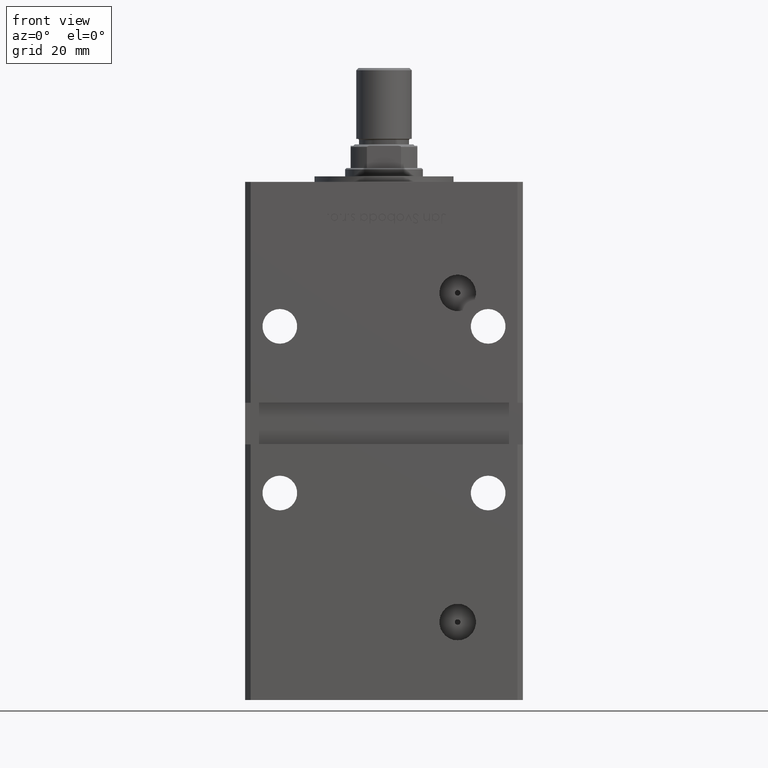
[diagram: clean part render]
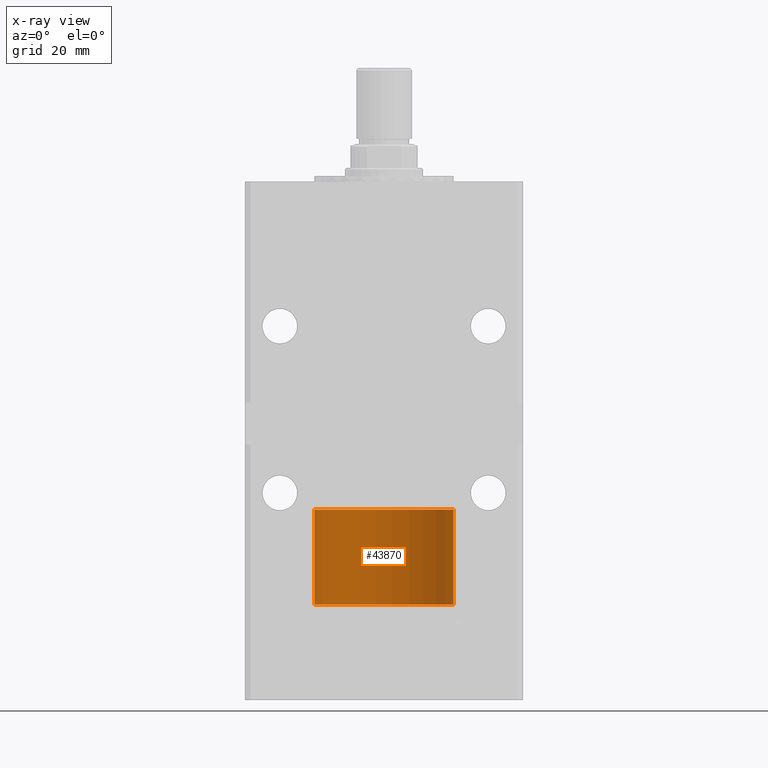
[diagram: x-ray — body ghosted, one internal face saturated and labeled with its STEP entity id]
A machine part, front view, then the same camera in x-ray: the body is ghosted and one INTERNAL B-rep face — a face not visible from any outside direction — is saturated and labeled: STEP entity #43870.
In plain terms, the highlighted cylindrical surface (partial cylindrical patch) has radius 25 mm, axis along (-0, -0, -1).
Its self-contained STEP definition (entity closure, byte-faithful):
#2282 = EDGE_LOOP ( 'NONE', ( #39715, #11488, #47138, #34311 ) ) ;
#4279 = CIRCLE ( 'NONE', #14676, 25.00000000000000000 ) ;
#4437 = AXIS2_PLACEMENT_3D ( 'NONE', #50116, #29241, #5095 ) ;
#5095 = DIRECTION ( 'NONE',  ( 1.000000000000000000, 0.000000000000000000, 0.000000000000000000 ) ) ;
#8720 = DIRECTION ( 'NONE',  ( 0.000000000000000000, 0.000000000000000000, 1.000000000000000000 ) ) ;
#10169 = VERTEX_POINT ( 'NONE', #46108 ) ;
#10518 = EDGE_CURVE ( 'NONE', #10169, #12643, #39926, .T. ) ;
#11488 = ORIENTED_EDGE ( 'NONE', *, *, #27154, .T. ) ;
#12643 = VERTEX_POINT ( 'NONE', #20250 ) ;
#13292 = VECTOR ( 'NONE', #38101, 1000.000000000000000 ) ;
#13600 = CARTESIAN_POINT ( 'NONE',  ( 0.000000000000000000, 0.000000000000000000, 34.25000000000000000 ) ) ;
#14676 = AXIS2_PLACEMENT_3D ( 'NONE', #45871, #8720, #29879 ) ;
#15584 = CARTESIAN_POINT ( 'NONE',  ( -25.00000000000000000, 0.000000000000000000, 34.25000000000000000 ) ) ;
#16865 = CARTESIAN_POINT ( 'NONE',  ( 25.00000000000000000, 3.061616997868383043E-15, 34.25000000000000000 ) ) ;
#17672 = CYLINDRICAL_SURFACE ( 'NONE', #31071, 25.00000000000000000 ) ;
#20250 = CARTESIAN_POINT ( 'NONE',  ( -25.00000000000000000, 0.000000000000000000, 0.000000000000000000 ) ) ;
#22276 = VERTEX_POINT ( 'NONE', #16865 ) ;
#27154 = EDGE_CURVE ( 'NONE', #22276, #10169, #31027, .T. ) ;
#27523 = LINE ( 'NONE', #15584, #47136 ) ;
#29241 = DIRECTION ( 'NONE',  ( 0.000000000000000000, 0.000000000000000000, 1.000000000000000000 ) ) ;
#29879 = DIRECTION ( 'NONE',  ( 1.000000000000000000, 0.000000000000000000, 0.000000000000000000 ) ) ;
#31027 = LINE ( 'NONE', #46497, #13292 ) ;
#31071 = AXIS2_PLACEMENT_3D ( 'NONE', #13600, #46688, #41567 ) ;
#32107 = EDGE_CURVE ( 'NONE', #34001, #12643, #27523, .T. ) ;
#34001 = VERTEX_POINT ( 'NONE', #40750 ) ;
#34311 = ORIENTED_EDGE ( 'NONE', *, *, #32107, .F. ) ;
#35925 = DIRECTION ( 'NONE',  ( -0.000000000000000000, -0.000000000000000000, -1.000000000000000000 ) ) ;
#38101 = DIRECTION ( 'NONE',  ( -0.000000000000000000, -0.000000000000000000, -1.000000000000000000 ) ) ;
#39715 = ORIENTED_EDGE ( 'NONE', *, *, #50246, .F. ) ;
#39926 = CIRCLE ( 'NONE', #4437, 25.00000000000000000 ) ;
#40750 = CARTESIAN_POINT ( 'NONE',  ( -25.00000000000000000, 0.000000000000000000, 34.25000000000000000 ) ) ;
#41567 = DIRECTION ( 'NONE',  ( -1.000000000000000000, 0.000000000000000000, 0.000000000000000000 ) ) ;
#43870 = ADVANCED_FACE ( 'NONE', ( #49695 ), #17672, .T. ) ;
#45871 = CARTESIAN_POINT ( 'NONE',  ( 0.000000000000000000, 0.000000000000000000, 34.25000000000000000 ) ) ;
#46108 = CARTESIAN_POINT ( 'NONE',  ( 25.00000000000000000, 3.061616997868383043E-15, 0.000000000000000000 ) ) ;
#46497 = CARTESIAN_POINT ( 'NONE',  ( 25.00000000000000000, 3.061616997868383043E-15, 34.25000000000000000 ) ) ;
#46688 = DIRECTION ( 'NONE',  ( -0.000000000000000000, -0.000000000000000000, -1.000000000000000000 ) ) ;
#47136 = VECTOR ( 'NONE', #35925, 1000.000000000000000 ) ;
#47138 = ORIENTED_EDGE ( 'NONE', *, *, #10518, .T. ) ;
#49695 = FACE_OUTER_BOUND ( 'NONE', #2282, .T. ) ;
#50116 = CARTESIAN_POINT ( 'NONE',  ( 0.000000000000000000, 0.000000000000000000, 0.000000000000000000 ) ) ;
#50246 = EDGE_CURVE ( 'NONE', #22276, #34001, #4279, .T. ) ;